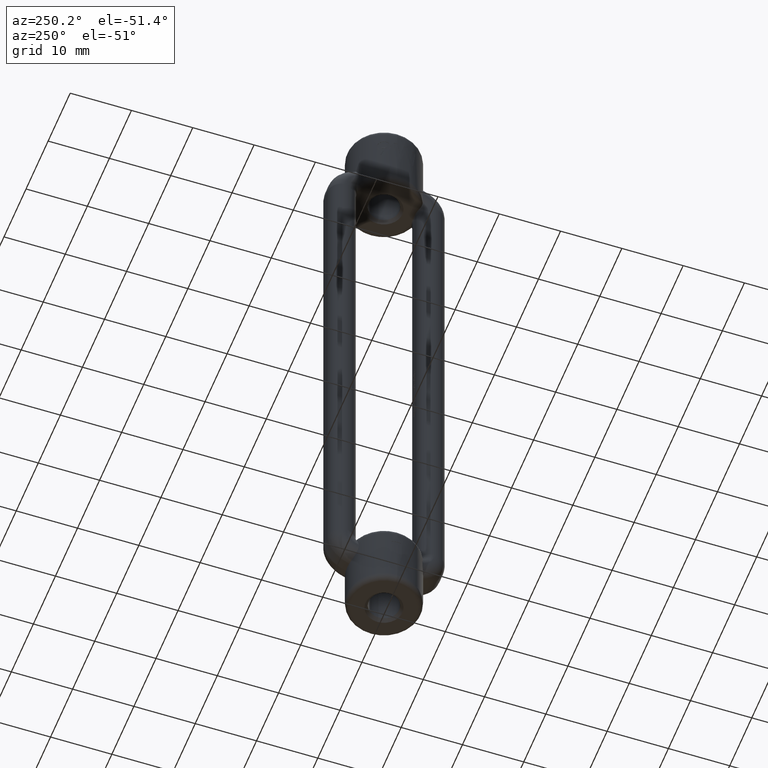
[diagram: clean part render]
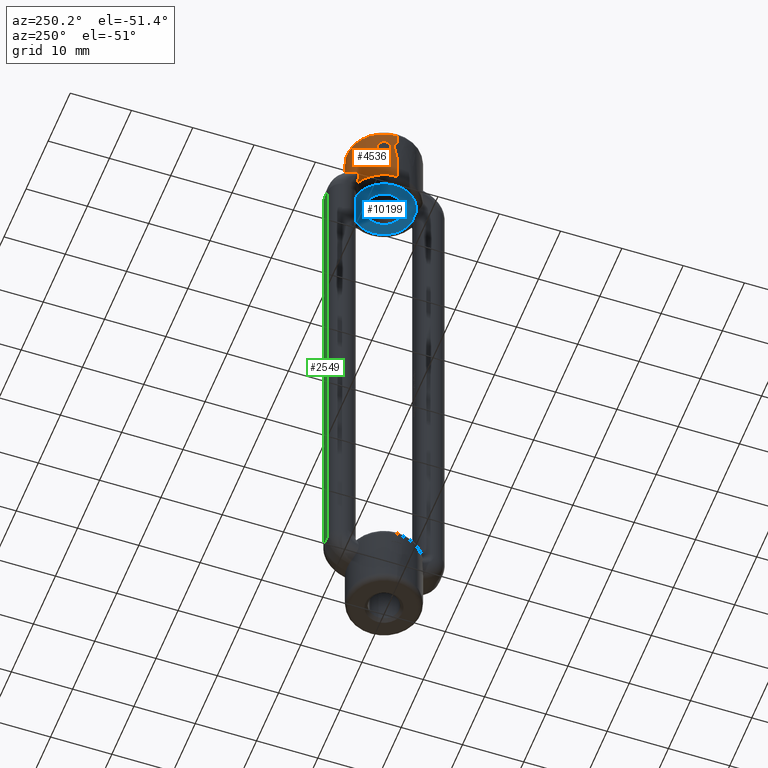
[diagram: same view with three faces highlighted in distinct colors, each labeled with its STEP entity id]
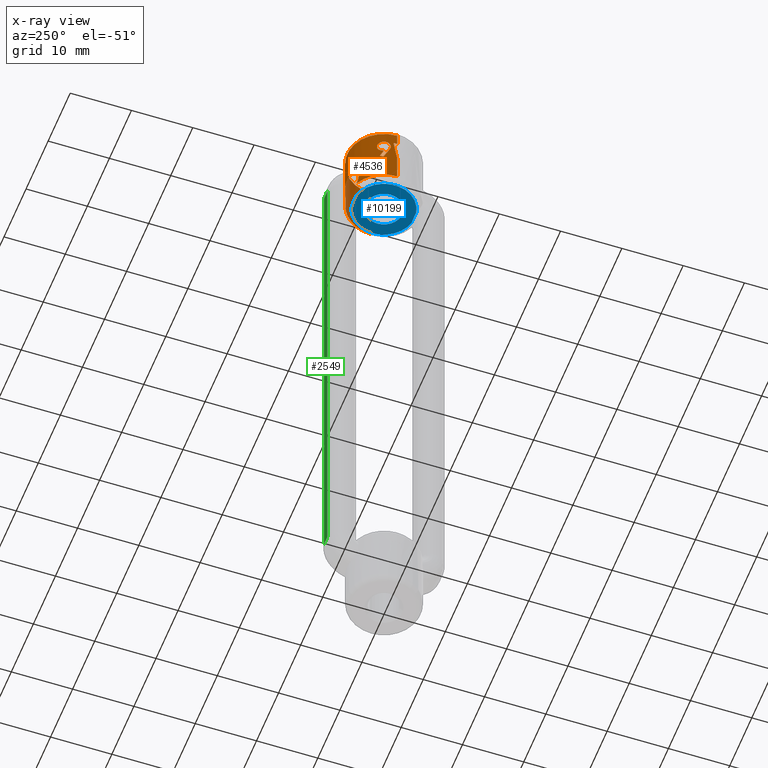
[diagram: x-ray of the same camera — body ghosted, the three highlighted faces saturated]
A machine part, auxiliary view with three faces highlighted in distinct colors.
The next image is the same camera in x-ray (body ghosted, the three faces saturated) — at least one of them is partly hidden behind the body in this view.
Their STEP definitions:

[orange] entity #4536 — the highlighted cylindrical surface (partial cylindrical patch) has radius 6 mm, axis along (-0, -0, 1).
#29 = CARTESIAN_POINT ( 'NONE',  ( 0.7499999999999978900, 5.952940449895339500, 47.64159737816591900 ) ) ;
#35 = VECTOR ( 'NONE', #5380, 1000.000000000000000 ) ;
#36 = ORIENTED_EDGE ( 'NONE', *, *, #11695, .T. ) ;
#68 = VERTEX_POINT ( 'NONE', #5520 ) ;
#226 = ORIENTED_EDGE ( 'NONE', *, *, #3572, .T. ) ;
#315 = ORIENTED_EDGE ( 'NONE', *, *, #6363, .T. ) ;
#320 = EDGE_CURVE ( 'NONE', #801, #796, #11181, .T. ) ;
#469 = CARTESIAN_POINT ( 'NONE',  ( 0.0000000000000000000, 8.766172331216892400E-017, 44.00000000000000000 ) ) ;
#546 = CARTESIAN_POINT ( 'NONE',  ( -2.304958704570859900, 5.541730175539280300, 47.14079233761434300 ) ) ;
#628 = CARTESIAN_POINT ( 'NONE',  ( 0.0000000000000000000, 8.766172331216892400E-017, 52.00000000000000000 ) ) ;
#651 = CARTESIAN_POINT ( 'NONE',  ( -5.913797678753359900, 1.013414514811786800, 50.85001698117587000 ) ) ;
#659 = CARTESIAN_POINT ( 'NONE',  ( -1.175002378234640200, 5.887585423306432200, 47.63384109583831400 ) ) ;
#796 = VERTEX_POINT ( 'NONE', #14278 ) ;
#801 = VERTEX_POINT ( 'NONE', #12590 ) ;
#810 = CARTESIAN_POINT ( 'NONE',  ( -2.937028009426084100, 5.232118848948914500, 46.08331505877326600 ) ) ;
#851 = CARTESIAN_POINT ( 'NONE',  ( -5.598020757115690100, 2.159206955844305700, 49.89532833627806200 ) ) ;
#853 = CARTESIAN_POINT ( 'NONE',  ( -5.185478949208065700, 3.018411571032358700, 51.02380822597781700 ) ) ;
#870 = CARTESIAN_POINT ( 'NONE',  ( -2.838942773329239600, 5.286108378085351900, 46.38542160063488500 ) ) ;
#929 = CARTESIAN_POINT ( 'NONE',  ( -3.006750691557700700, 5.192315499144336300, 45.44067078651962500 ) ) ;
#949 = CARTESIAN_POINT ( 'NONE',  ( -5.549232287926697500, 2.289185045393102400, 48.50420673076921900 ) ) ;
#969 = CARTESIAN_POINT ( 'NONE',  ( -5.190209461629272000, 3.010271162405922000, 50.83120399365944300 ) ) ;
#1026 = B_SPLINE_CURVE_WITH_KNOTS ( 'NONE', 3,
 ( #11283, #853, #7414, #3450, #6158, #16638, #15263, #15207, #7314, #8629, #8747, #15161, #6105, #12598, #16462, #2192, #9854, #7477, #8803, #8581, #5937, #12496, #1971, #16524, #11171, #7258 ),
 .UNSPECIFIED., .F., .F.,
 ( 4, 1, 1, 2, 2, 2, 2, 2, 2, 2, 1, 1, 2, 2, 4 ),
 ( 0.0000000000000000000, 0.03125000000002288400, 0.04687500000002821400, 0.05468750000003089900, 0.06250000000003358400, 0.1250000000000300900, 0.2500000000000230900, 0.5000000000000087700, 0.7499999999999944500, 0.8749999999999896700, 0.9062499999999891200, 0.9218749999999890100, 0.9296874999999890100, 0.9374999999999891200, 1.000000000000000000 ),
 .UNSPECIFIED. ) ;
#1089 = CARTESIAN_POINT ( 'NONE',  ( -5.187644535123259200, 3.014688094462115500, 50.88460341849770400 ) ) ;
#1152 = EDGE_LOOP ( 'NONE', ( #12544, #315, #16393, #226, #12333, #6176, #13812, #11956, #3972, #9320, #3416, #3125 ) ) ;
#1195 = CARTESIAN_POINT ( 'NONE',  ( 0.7499999999999978900, 5.952940449895339500, 47.64159737816591900 ) ) ;
#1205 = CARTESIAN_POINT ( 'NONE',  ( -5.915051361995752500, 1.006066045189890000, 51.04286083507716400 ) ) ;
#1288 = CARTESIAN_POINT ( 'NONE',  ( 2.945415158984749000, 5.227405318499182700, 46.08118356738097500 ) ) ;
#1317 = CARTESIAN_POINT ( 'NONE',  ( -5.914140838981714900, 1.011404136988328200, 51.11892036607588400 ) ) ;
#1382 = VERTEX_POINT ( 'NONE', #9017 ) ;
#1706 = EDGE_CURVE ( 'NONE', #14649, #11580, #2002, .T. ) ;
#1733 = LINE ( 'NONE', #2802, #7085 ) ;
#1807 = AXIS2_PLACEMENT_3D ( 'NONE', #3673, #8973, #3853 ) ;
#1825 = CARTESIAN_POINT ( 'NONE',  ( -5.999522629618147600, 0.2112708160789230900, 49.66666666666667100 ) ) ;
#1929 = CARTESIAN_POINT ( 'NONE',  ( -0.9651402668189622600, 5.925835324038244400, 47.65189275775177400 ) ) ;
#1971 = CARTESIAN_POINT ( 'NONE',  ( -5.600704215252572600, 2.152236259757724000, 52.08480081622470000 ) ) ;
#1975 = VERTEX_POINT ( 'NONE', #10804 ) ;
#1979 = CARTESIAN_POINT ( 'NONE',  ( -5.914525494683103600, 1.009152575430216000, 50.89320989713968400 ) ) ;
#1987 = AXIS2_PLACEMENT_3D ( 'NONE', #3105, #4446, #13616 ) ;
#2002 = CIRCLE ( 'NONE', #1807, 6.000000000000010700 ) ;
#2191 = CARTESIAN_POINT ( 'NONE',  ( -5.530826958189355700, 2.326954081025029500, 49.92444789662295100 ) ) ;
#2192 = CARTESIAN_POINT ( 'NONE',  ( -5.509734893982889400, 2.376316600366511700, 52.03616228566760800 ) ) ;
#2203 = CARTESIAN_POINT ( 'NONE',  ( -2.800668084158417500, 5.308986296945967400, 44.39628917197981700 ) ) ;
#2241 = CARTESIAN_POINT ( 'NONE',  ( -5.283773864583570100, 2.843084887911955200, 50.33186427976853800 ) ) ;
#2254 = CARTESIAN_POINT ( 'NONE',  ( -3.006026016381828600, 5.192788520953060400, 45.65923896246287200 ) ) ;
#2267 = VERTEX_POINT ( 'NONE', #7447 ) ;
#2360 = CARTESIAN_POINT ( 'NONE',  ( -5.696537172970273000, 1.884371661953073700, 52.07782451861479000 ) ) ;
#2451 = B_SPLINE_CURVE_WITH_KNOTS ( 'NONE', 3,
 ( #7554, #14135, #11871, #11766, #15696, #1288, #11819, #9015, #7955, #13097, #9189, #6419, #7841, #4003, #17024, #3888, #3942, #29 ),
 .UNSPECIFIED., .F., .F.,
 ( 4, 2, 2, 2, 2, 2, 2, 2, 4 ),
 ( 2.166501582897853700E-007, 0.001282598035847452200, 0.001923788728692033400, 0.002564979421536614900, 0.002885574767958914900, 0.003206170114381215400, 0.003847360807225815900, 0.004488551500070416000, 0.005129742192915016900 ),
 .UNSPECIFIED. ) ;
#2475 = CARTESIAN_POINT ( 'NONE',  ( -5.914772430435239600, 1.007706064400076800, 51.07846341776329500 ) ) ;
#2535 = CARTESIAN_POINT ( 'NONE',  ( -5.185793096179752500, 3.017872003833334600, 50.95270240985832500 ) ) ;
#2587 = CARTESIAN_POINT ( 'NONE',  ( -5.719082213135365600, 1.838454926354022900, 48.99265491452990100 ) ) ;
#2592 = CARTESIAN_POINT ( 'NONE',  ( 0.0000000000000000000, 8.766172331216892400E-017, 43.00000000000000000 ) ) ;
#2646 = CARTESIAN_POINT ( 'NONE',  ( -5.889878537244712200, 1.145009742296649900, 51.53817584700581700 ) ) ;
#2697 = DIRECTION ( 'NONE',  ( 1.000000000000000000, 0.0000000000000000000, 0.0000000000000000000 ) ) ;
#2736 = EDGE_CURVE ( 'NONE', #9759, #6697, #1733, .T. ) ;
#2802 = CARTESIAN_POINT ( 'NONE',  ( -6.000000000000010700, 8.224498028005821500E-016, 43.00000000000000000 ) ) ;
#2937 = VERTEX_POINT ( 'NONE', #5911 ) ;
#2985 = DIRECTION ( 'NONE',  ( -0.0000000000000000000, -0.0000000000000000000, 1.000000000000000000 ) ) ;
#3105 = CARTESIAN_POINT ( 'NONE',  ( 0.0000000000000000000, 8.766172331216892400E-017, 53.99999999999999300 ) ) ;
#3125 = ORIENTED_EDGE ( 'NONE', *, *, #6924, .T. ) ;
#3164 = FACE_OUTER_BOUND ( 'NONE', #1152, .T. ) ;
#3169 = CARTESIAN_POINT ( 'NONE',  ( -6.000000000000010700, 8.224498028005821500E-016, 44.00000000000000000 ) ) ;
#3289 = EDGE_LOOP ( 'NONE', ( #36, #15165, #14578, #6222, #10802, #12403, #13098 ) ) ;
#3316 = CARTESIAN_POINT ( 'NONE',  ( -5.999983614281760000, 0.01402242313256421600, 48.50000000000000000 ) ) ;
#3332 = DIRECTION ( 'NONE',  ( -0.9999873761903792500, -0.005024685052919713000, 0.0000000000000000000 ) ) ;
#3416 = ORIENTED_EDGE ( 'NONE', *, *, #16732, .T. ) ;
#3450 = CARTESIAN_POINT ( 'NONE',  ( -5.186676181487635900, 3.016353840689753000, 51.08318639601817800 ) ) ;
#3501 = CARTESIAN_POINT ( 'NONE',  ( -5.504255819962291500, 2.389059699880379500, 49.94568608195660200 ) ) ;
#3565 = CARTESIAN_POINT ( 'NONE',  ( -5.247931604637897400, 2.908713083989622500, 50.45175496275299300 ) ) ;
#3571 = CIRCLE ( 'NONE', #6489, 6.000000000000010700 ) ;
#3572 = EDGE_CURVE ( 'NONE', #2267, #9654, #13815, .T. ) ;
#3584 = CARTESIAN_POINT ( 'NONE',  ( -2.960064717899300900, 5.219035171798940300, 45.97723860831986500 ) ) ;
#3668 = CARTESIAN_POINT ( 'NONE',  ( -5.394719864004135200, 2.626213545947727400, 48.69210737179486200 ) ) ;
#3673 = CARTESIAN_POINT ( 'NONE',  ( 0.0000000000000000000, 8.766172331216892400E-017, 44.00000000000000000 ) ) ;
#3736 = VERTEX_POINT ( 'NONE', #16607 ) ;
#3853 = DIRECTION ( 'NONE',  ( 1.000000000000000000, 0.0000000000000000000, 0.0000000000000000000 ) ) ;
#3888 = CARTESIAN_POINT ( 'NONE',  ( 1.179724464645114800, 5.886598269086723800, 47.63311720288320600 ) ) ;
#3913 = CARTESIAN_POINT ( 'NONE',  ( -5.913225707512100200, 1.016745853756190600, 51.16212216187960800 ) ) ;
#3942 = CARTESIAN_POINT ( 'NONE',  ( 0.9650953604838098400, 5.925840981704811700, 47.65189060879237100 ) ) ;
#3972 = ORIENTED_EDGE ( 'NONE', *, *, #12320, .T. ) ;
#3973 = CARTESIAN_POINT ( 'NONE',  ( -5.801266004134415500, 1.531756321629560000, 51.94713610454915200 ) ) ;
#4003 = CARTESIAN_POINT ( 'NONE',  ( 1.783913712234235700, 5.731824556728942500, 47.46652278982664800 ) ) ;
#4031 = CARTESIAN_POINT ( 'NONE',  ( -5.896079709996216800, 1.112195178687999100, 51.47702964761077000 ) ) ;
#4079 = EDGE_CURVE ( 'NONE', #2937, #16707, #7696, .T. ) ;
#4291 = CARTESIAN_POINT ( 'NONE',  ( -2.647647802106272600, 5.384232639476302000, 44.00000000002789600 ) ) ;
#4363 = CARTESIAN_POINT ( 'NONE',  ( -5.563410942477244000, 2.256058481308990800, 49.49138621794871500 ) ) ;
#4446 = DIRECTION ( 'NONE',  ( 0.0000000000000000000, 0.0000000000000000000, -1.000000000000000000 ) ) ;
#4480 = EDGE_CURVE ( 'NONE', #6991, #2937, #14571, .T. ) ;
#4536 = ADVANCED_FACE ( 'NONE', ( #6031, #3164 ), #8922, .T. ) ;
#4538 = CARTESIAN_POINT ( 'NONE',  ( -5.483715815831623700, 2.443399688376807400, 49.09174679487178800 ) ) ;
#4586 = CARTESIAN_POINT ( 'NONE',  ( -5.893937001892933100, 1.123846012227063500, 50.45965625714669800 ) ) ;
#4604 = CIRCLE ( 'NONE', #1987, 6.000000000000010700 ) ;
#4652 = CARTESIAN_POINT ( 'NONE',  ( -2.705202318169218400, 5.356494360883928600, 46.66855899342463900 ) ) ;
#4700 = CARTESIAN_POINT ( 'NONE',  ( -5.910426797692108100, 1.032910514748755200, 50.73827508228871600 ) ) ;
#4756 = CARTESIAN_POINT ( 'NONE',  ( -2.647647802106272600, 5.384232639476302000, 44.00000000002789600 ) ) ;
#4848 = CARTESIAN_POINT ( 'NONE',  ( -5.373787346706635900, 2.670674292670434100, 50.11553027444055200 ) ) ;
#4852 = CARTESIAN_POINT ( 'NONE',  ( -5.672547408745510100, 1.955049107892157900, 52.08587712538162900 ) ) ;
#4876 = CARTESIAN_POINT ( 'NONE',  ( -5.394719864004135200, 2.626213545947727400, 48.69210737179486200 ) ) ;
#4907 = CARTESIAN_POINT ( 'NONE',  ( -5.233050530486567100, 2.935270178268795300, 50.51361642789479600 ) ) ;
#5135 = CARTESIAN_POINT ( 'NONE',  ( -5.186505673003161100, 3.016647399863949400, 50.91716474540790900 ) ) ;
#5137 = CARTESIAN_POINT ( 'NONE',  ( -5.864256930983699200, 1.269246838516550100, 51.71342967741062300 ) ) ;
#5297 = CARTESIAN_POINT ( 'NONE',  ( -5.914288357984567300, 1.010541147225898700, 51.11046543049739200 ) ) ;
#5380 = DIRECTION ( 'NONE',  ( -0.0000000000000000000, -0.0000000000000000000, 1.000000000000000000 ) ) ;
#5500 = B_SPLINE_CURVE_WITH_KNOTS ( 'NONE', 3,
 ( #13656, #1929, #659, #7102, #16313, #8419, #546, #11465, #4652, #870, #16650, #810, #3584, #2254, #929, #8763, #2203, #4756 ),
 .UNSPECIFIED., .F., .F.,
 ( 4, 2, 2, 2, 2, 2, 2, 2, 4 ),
 ( 1.989487527438745200E-007, 0.0006422322189873843900, 0.001284265489222024800, 0.001926298759456665400, 0.002568332029691305800, 0.002889348664808616900, 0.003210365299925928000, 0.003852398570160571000, 0.005136465110629856600 ),
 .UNSPECIFIED. ) ;
#5520 = CARTESIAN_POINT ( 'NONE',  ( -5.614584539596020100, 2.115760016573116500, 48.41025641025639500 ) ) ;
#5571 = CARTESIAN_POINT ( 'NONE',  ( 0.0000000000000000000, 8.766172331216892400E-017, 48.49999999999999300 ) ) ;
#5584 = B_SPLINE_CURVE_WITH_KNOTS ( 'NONE', 3,
 ( #15080, #949, #8726, #3668 ),
 .UNSPECIFIED., .F., .F.,
 ( 4, 4 ),
 ( 0.0000000000000000000, 1.000000000000000000 ),
 .UNSPECIFIED. ) ;
#5684 = CARTESIAN_POINT ( 'NONE',  ( -5.633394045033795400, 2.065156539678746600, 49.89102564102563500 ) ) ;
#5808 = DIRECTION ( 'NONE',  ( -0.0000000000000000000, -0.0000000000000000000, 1.000000000000000000 ) ) ;
#5834 = CARTESIAN_POINT ( 'NONE',  ( -5.915025276794478900, 1.006219327258190500, 50.94001500447726700 ) ) ;
#5911 = CARTESIAN_POINT ( 'NONE',  ( -5.915256637066153000, 1.004857660390238800, 50.99529246794870800 ) ) ;
#5937 = CARTESIAN_POINT ( 'NONE',  ( -5.595412412063323500, 2.165959227057439000, 52.08345306902477000 ) ) ;
#6031 = FACE_BOUND ( 'NONE', #3289, .T. ) ;
#6082 = VERTEX_POINT ( 'NONE', #8553 ) ;
#6105 = CARTESIAN_POINT ( 'NONE',  ( -5.285742065962826300, 2.841130540971114300, 51.66094322215631300 ) ) ;
#6122 = EDGE_CURVE ( 'NONE', #9280, #1382, #2451, .T. ) ;
#6136 = AXIS2_PLACEMENT_3D ( 'NONE', #5571, #2985, #14784 ) ;
#6158 = CARTESIAN_POINT ( 'NONE',  ( -5.186996035843475500, 3.015803735539163400, 51.09369494866891900 ) ) ;
#6176 = ORIENTED_EDGE ( 'NONE', *, *, #2736, .T. ) ;
#6222 = ORIENTED_EDGE ( 'NONE', *, *, #12423, .T. ) ;
#6322 = CARTESIAN_POINT ( 'NONE',  ( -5.802997340230840400, 1.553396197404405900, 49.57505341880340700 ) ) ;
#6343 = CARTESIAN_POINT ( 'NONE',  ( -5.865411788359582900, 1.263702715425021300, 50.15745192307691300 ) ) ;
#6363 = EDGE_CURVE ( 'NONE', #11580, #3736, #15700, .T. ) ;
#6419 = CARTESIAN_POINT ( 'NONE',  ( 2.307299012493393900, 5.540780342936117500, 47.13899643784969800 ) ) ;
#6449 = CARTESIAN_POINT ( 'NONE',  ( -5.910575415112737700, 1.032061561607305700, 51.24503538478880700 ) ) ;
#6489 = AXIS2_PLACEMENT_3D ( 'NONE', #469, #8462, #6966 ) ;
#6587 = CARTESIAN_POINT ( 'NONE',  ( -5.394719864004135200, 2.626213545947727400, 48.69210737179486200 ) ) ;
#6697 = VERTEX_POINT ( 'NONE', #16667 ) ;
#6924 = EDGE_CURVE ( 'NONE', #6082, #14649, #5500, .T. ) ;
#6966 = DIRECTION ( 'NONE',  ( 1.000000000000000000, 0.0000000000000000000, 0.0000000000000000000 ) ) ;
#6976 = VERTEX_POINT ( 'NONE', #12614 ) ;
#6991 = VERTEX_POINT ( 'NONE', #16429 ) ;
#7085 = VECTOR ( 'NONE', #10634, 1000.000000000000000 ) ;
#7102 = CARTESIAN_POINT ( 'NONE',  ( -1.584637498169512200, 5.790787226706097400, 47.54182828196277900 ) ) ;
#7209 = CARTESIAN_POINT ( 'NONE',  ( -5.908220257196444600, 1.045521629168334200, 50.68415769741501000 ) ) ;
#7226 = CARTESIAN_POINT ( 'NONE',  ( -5.989327010479922100, 0.4084961475492161500, 50.83333333333333600 ) ) ;
#7258 = CARTESIAN_POINT ( 'NONE',  ( -5.638924076303554000, 2.050008600392749800, 52.08974358974358400 ) ) ;
#7314 = CARTESIAN_POINT ( 'NONE',  ( -5.191051110645673800, 3.008825472824483400, 51.17580378518741900 ) ) ;
#7368 = CARTESIAN_POINT ( 'NONE',  ( -5.914593178642836500, 1.008755585918290200, 50.89845301496185200 ) ) ;
#7412 = CARTESIAN_POINT ( 'NONE',  ( -5.617971215487262500, 2.106825805952720300, 49.89233849633169600 ) ) ;
#7414 = CARTESIAN_POINT ( 'NONE',  ( -5.185982692849775000, 3.017546107437199400, 51.05479092943805600 ) ) ;
#7447 = CARTESIAN_POINT ( 'NONE',  ( -5.999983614281760000, 0.01402242313256421600, 48.50000000000000000 ) ) ;
#7475 = CARTESIAN_POINT ( 'NONE',  ( -5.608541093517965600, 2.131747098271349100, 49.89353616647608200 ) ) ;
#7477 = CARTESIAN_POINT ( 'NONE',  ( -5.569708897837932300, 2.231288101780651600, 52.07396232378202700 ) ) ;
#7528 = CARTESIAN_POINT ( 'NONE',  ( -5.422649064832441500, 2.571503576586383000, 50.03272189744241400 ) ) ;
#7531 = CARTESIAN_POINT ( 'NONE',  ( -5.685442198442397700, 1.917517733709261500, 52.08269539686131100 ) ) ;
#7554 = CARTESIAN_POINT ( 'NONE',  ( 2.647647802095501200, 5.384232639481599100, 44.00000000000000000 ) ) ;
#7593 = EDGE_CURVE ( 'NONE', #2267, #3736, #15878, .T. ) ;
#7645 = EDGE_CURVE ( 'NONE', #16707, #68, #15089, .T. ) ;
#7696 = B_SPLINE_CURVE_WITH_KNOTS ( 'NONE', 3,
 ( #14871, #8531, #5834, #15107, #7368, #1979, #651, #12390, #4700, #7209, #9860, #12554, #11120, #9808, #13882, #4586, #11289, #16593 ),
 .UNSPECIFIED., .F., .F.,
 ( 4, 1, 2, 2, 2, 1, 1, 1, 2, 2, 4 ),
 ( 0.0000000000000000000, 0.06250000000005623300, 0.09375000000007262200, 0.1250000000000890100, 0.2500000000001297300, 0.3750000000001705300, 0.4375000000001909600, 0.4687500000002122200, 0.4843750000002228200, 0.5000000000002333700, 1.000000000000000000 ),
 .UNSPECIFIED. ) ;
#7750 = CARTESIAN_POINT ( 'NONE',  ( 0.2470596802528521300, 6.000124115655126800, 47.62342693321000600 ) ) ;
#7841 = CARTESIAN_POINT ( 'NONE',  ( 2.143290492561870800, 5.607358268053874700, 47.26585826454376600 ) ) ;
#7868 = CARTESIAN_POINT ( 'NONE',  ( -5.785097106415429700, 1.591733692839867800, 51.98179083212963300 ) ) ;
#7873 = CARTESIAN_POINT ( 'NONE',  ( -6.000000000000010700, 8.224498028005821500E-016, 52.00000000000000000 ) ) ;
#7955 = CARTESIAN_POINT ( 'NONE',  ( 2.699534470347795300, 5.358797340173954800, 46.66224462245958900 ) ) ;
#8092 = VECTOR ( 'NONE', #11847, 1000.000000000000000 ) ;
#8419 = CARTESIAN_POINT ( 'NONE',  ( -2.139499387628913200, 5.608793237180060800, 47.26842114432391600 ) ) ;
#8462 = DIRECTION ( 'NONE',  ( -0.0000000000000000000, -0.0000000000000000000, 1.000000000000000000 ) ) ;
#8531 = CARTESIAN_POINT ( 'NONE',  ( -5.915186918769435900, 1.005268068384979100, 50.97161399982228900 ) ) ;
#8553 = CARTESIAN_POINT ( 'NONE',  ( -0.7499999999999982200, 5.952940449895340400, 47.64159737816591900 ) ) ;
#8581 = CARTESIAN_POINT ( 'NONE',  ( -5.590637564509831000, 2.178280807828333100, 52.08210314328504600 ) ) ;
#8629 = CARTESIAN_POINT ( 'NONE',  ( -5.200824092885249600, 2.991922156720746400, 51.28380492225702600 ) ) ;
#8726 = CARTESIAN_POINT ( 'NONE',  ( -5.475839162623902500, 2.459579765426188400, 48.59815705128204400 ) ) ;
#8744 = CARTESIAN_POINT ( 'NONE',  ( -5.583194556093670400, 2.197535741972863800, 49.89873911669149500 ) ) ;
#8747 = CARTESIAN_POINT ( 'NONE',  ( -5.210399734141192100, 2.975299045457357100, 51.35142465657794700 ) ) ;
#8749 = CARTESIAN_POINT ( 'NONE',  ( -5.638924076303554000, 2.050008600392749800, 52.08974358974358400 ) ) ;
#8763 = CARTESIAN_POINT ( 'NONE',  ( -2.938385424700627400, 5.231505610362474600, 44.80068779011858700 ) ) ;
#8803 = CARTESIAN_POINT ( 'NONE',  ( -5.579429179443749800, 2.206923044518448200, 52.07831179699569900 ) ) ;
#8859 = CARTESIAN_POINT ( 'NONE',  ( -5.192056114414861600, 3.007085214737347500, 50.80496202017811700 ) ) ;
#8922 = CYLINDRICAL_SURFACE ( 'NONE', #17043, 6.000000000000010700 ) ;
#8963 = B_SPLINE_CURVE_WITH_KNOTS ( 'NONE', 3,
 ( #6587, #4538, #4363, #5684 ),
 .UNSPECIFIED., .F., .F.,
 ( 4, 4 ),
 ( 0.0000000000000000000, 1.000000000000000000 ),
 .UNSPECIFIED. ) ;
#8967 = EDGE_CURVE ( 'NONE', #10700, #801, #8963, .T. ) ;
#8973 = DIRECTION ( 'NONE',  ( -0.0000000000000000000, -0.0000000000000000000, 1.000000000000000000 ) ) ;
#9015 = CARTESIAN_POINT ( 'NONE',  ( 2.751915404549501800, 5.331932984584225800, 46.57028028939994600 ) ) ;
#9017 = CARTESIAN_POINT ( 'NONE',  ( 0.7499999999999978900, 5.952940449895339500, 47.64159737816591900 ) ) ;
#9090 = CARTESIAN_POINT ( 'NONE',  ( -5.865411788359582900, 1.263702715425021300, 50.15745192307691300 ) ) ;
#9189 = CARTESIAN_POINT ( 'NONE',  ( 2.518899704307326900, 5.446201719094947400, 46.91376766499575300 ) ) ;
#9215 = CARTESIAN_POINT ( 'NONE',  ( -5.809351232582817400, 1.500750504070064600, 51.92673583835823300 ) ) ;
#9280 = VERTEX_POINT ( 'NONE', #11647 ) ;
#9320 = ORIENTED_EDGE ( 'NONE', *, *, #6122, .T. ) ;
#9654 = VERTEX_POINT ( 'NONE', #10253 ) ;
#9759 = VERTEX_POINT ( 'NONE', #7873 ) ;
#9808 = CARTESIAN_POINT ( 'NONE',  ( -5.901586414052502500, 1.082257056010603500, 50.57046072802408100 ) ) ;
#9810 = CIRCLE ( 'NONE', #14562, 6.000000000000010700 ) ;
#9854 = CARTESIAN_POINT ( 'NONE',  ( -5.537064974899203100, 2.312092615054504500, 52.05702019568558100 ) ) ;
#9860 = CARTESIAN_POINT ( 'NONE',  ( -5.904877875536301200, 1.064179042769247700, 50.62251111556864900 ) ) ;
#10067 = CARTESIAN_POINT ( 'NONE',  ( -5.666915829129932200, 1.971333995608873100, 52.08697791684601000 ) ) ;
#10119 = CARTESIAN_POINT ( 'NONE',  ( -5.569869102981122900, 2.231086889794892300, 49.90389396253162600 ) ) ;
#10123 = CARTESIAN_POINT ( 'NONE',  ( -5.647044863205568500, 2.027670888847766600, 52.08925434797088600 ) ) ;
#10178 = CARTESIAN_POINT ( 'NONE',  ( -5.633394045033795400, 2.065156539678746600, 49.89102564102563500 ) ) ;
#10180 = CARTESIAN_POINT ( 'NONE',  ( 6.000000000000010700, 8.766172331216892400E-017, 43.00000000000000000 ) ) ;
#10182 = CARTESIAN_POINT ( 'NONE',  ( -5.750082517442057100, 1.713976670865800900, 52.03469598263306800 ) ) ;
#10253 = CARTESIAN_POINT ( 'NONE',  ( -5.969446269926165400, 0.6047406307374466600, 52.00000000000000000 ) ) ;
#10423 = CARTESIAN_POINT ( 'NONE',  ( -5.877598269230657200, 1.205930225551805200, 51.63069127555778700 ) ) ;
#10474 = CARTESIAN_POINT ( 'NONE',  ( -5.912437324022366000, 1.021321737102433200, 51.18928139037895900 ) ) ;
#10526 = CARTESIAN_POINT ( 'NONE',  ( -5.905542431275138800, 1.060506493552342300, 51.34665567867592300 ) ) ;
#10587 = CARTESIAN_POINT ( 'NONE',  ( -5.913902427076614300, 1.012797994447336900, 51.13169249053176900 ) ) ;
#10634 = DIRECTION ( 'NONE',  ( -0.0000000000000000000, -0.0000000000000000000, 1.000000000000000000 ) ) ;
#10700 = VERTEX_POINT ( 'NONE', #4876 ) ;
#10802 = ORIENTED_EDGE ( 'NONE', *, *, #4480, .T. ) ;
#10804 = CARTESIAN_POINT ( 'NONE',  ( 6.000000000000010700, 8.766172331216892400E-017, 44.00000000000000000 ) ) ;
#11120 = CARTESIAN_POINT ( 'NONE',  ( -5.902160279095485700, 1.079123059563334500, 50.57908995791014200 ) ) ;
#11171 = CARTESIAN_POINT ( 'NONE',  ( -5.622760375411020900, 2.094469819778665100, 52.08851379480754700 ) ) ;
#11181 = B_SPLINE_CURVE_WITH_KNOTS ( 'NONE', 3,
 ( #10178, #13927, #7412, #7475, #13981, #16637, #851, #15374, #8744, #10119, #2191, #3501, #7528, #4848, #14038, #2241, #3565, #4907, #14104, #16751, #8859, #969, #12826, #17094, #1089, #16992, #5135, #2535, #15548 ),
 .UNSPECIFIED., .F., .F.,
 ( 4, 2, 1, 2, 2, 2, 2, 2, 2, 2, 2, 1, 1, 2, 2, 4 ),
 ( 0.0000000000000000000, 0.03125000000000430900, 0.04687500000000709200, 0.05468750000000805600, 0.06250000000000902100, 0.1250000000000106600, 0.2500000000000163200, 0.5000000000000283100, 0.6250000000000304200, 0.7500000000000325300, 0.8750000000000347500, 0.9062500000000323100, 0.9218750000000370800, 0.9296875000000334200, 0.9375000000000296400, 1.000000000000000000 ),
 .UNSPECIFIED. ) ;
#11283 = CARTESIAN_POINT ( 'NONE',  ( -5.185183489933542100, 3.018919040935137900, 51.00020032051281000 ) ) ;
#11289 = CARTESIAN_POINT ( 'NONE',  ( -5.882713697485474600, 1.183396785470598900, 50.32485419422646100 ) ) ;
#11397 = CARTESIAN_POINT ( 'NONE',  ( -5.719533369549939300, 1.813375404600119600, 52.06338168877822200 ) ) ;
#11465 = CARTESIAN_POINT ( 'NONE',  ( -2.585578421051064600, 5.416492610246478100, 46.84347446245404000 ) ) ;
#11506 = CARTESIAN_POINT ( 'NONE',  ( -5.662881964147581800, 1.982888585143583800, 52.08756391052561000 ) ) ;
#11580 = VERTEX_POINT ( 'NONE', #3169 ) ;
#11602 = LINE ( 'NONE', #10180, #8092 ) ;
#11647 = CARTESIAN_POINT ( 'NONE',  ( 2.647647802095501200, 5.384232639481599100, 44.00000000000000000 ) ) ;
#11687 = CARTESIAN_POINT ( 'NONE',  ( -5.915256637066153000, 1.004857660390238800, 50.99529246794870800 ) ) ;
#11695 = EDGE_CURVE ( 'NONE', #68, #10700, #5584, .T. ) ;
#11766 = CARTESIAN_POINT ( 'NONE',  ( 3.006789111494904800, 5.192295254808551700, 45.43910314158557600 ) ) ;
#11819 = CARTESIAN_POINT ( 'NONE',  ( 2.885886852020088900, 5.261354204090058500, 46.28475913905557300 ) ) ;
#11847 = DIRECTION ( 'NONE',  ( -0.0000000000000000000, -0.0000000000000000000, 1.000000000000000000 ) ) ;
#11848 = CARTESIAN_POINT ( 'NONE',  ( -5.776645422852912000, 1.622158304208575900, 51.99711071163318400 ) ) ;
#11871 = CARTESIAN_POINT ( 'NONE',  ( 2.937398188807678800, 5.232067944592826000, 44.79533901303744900 ) ) ;
#11927 = CARTESIAN_POINT ( 'NONE',  ( -6.000000000000010700, 8.224498028005821500E-016, 43.00000000000000000 ) ) ;
#11956 = ORIENTED_EDGE ( 'NONE', *, *, #12522, .F. ) ;
#12320 = EDGE_CURVE ( 'NONE', #1975, #9280, #3571, .T. ) ;
#12333 = ORIENTED_EDGE ( 'NONE', *, *, #15764, .T. ) ;
#12390 = CARTESIAN_POINT ( 'NONE',  ( -5.912822342017643800, 1.019107950166486400, 50.81156711329974500 ) ) ;
#12403 = ORIENTED_EDGE ( 'NONE', *, *, #4079, .T. ) ;
#12423 = EDGE_CURVE ( 'NONE', #796, #6991, #1026, .T. ) ;
#12496 = CARTESIAN_POINT ( 'NONE',  ( -5.598589203169311200, 2.157734545421096300, 52.08429192241662500 ) ) ;
#12522 = EDGE_CURVE ( 'NONE', #1975, #6976, #11602, .T. ) ;
#12544 = ORIENTED_EDGE ( 'NONE', *, *, #1706, .T. ) ;
#12554 = CARTESIAN_POINT ( 'NONE',  ( -5.903006280844812700, 1.074492298065033500, 50.59206041643872000 ) ) ;
#12590 = CARTESIAN_POINT ( 'NONE',  ( -5.633394045033795400, 2.065156539678746600, 49.89102564102563500 ) ) ;
#12598 = CARTESIAN_POINT ( 'NONE',  ( -5.382196161582791100, 2.653875735028155900, 51.87551797560972500 ) ) ;
#12614 = CARTESIAN_POINT ( 'NONE',  ( 6.000000000000010700, 8.766172331216892400E-017, 53.99999999999999300 ) ) ;
#12715 = CARTESIAN_POINT ( 'NONE',  ( -5.654016764683374800, 2.008086539101782400, 52.08864827294480200 ) ) ;
#12826 = CARTESIAN_POINT ( 'NONE',  ( -5.188587288180492900, 3.013065395893922600, 50.86225165265479800 ) ) ;
#13060 = CARTESIAN_POINT ( 'NONE',  ( -0.7499999999999982200, 5.952940449895340400, 47.64159737816591900 ) ) ;
#13097 = CARTESIAN_POINT ( 'NONE',  ( 2.583220519880362600, 5.415825609758909000, 46.83352028015509900 ) ) ;
#13098 = ORIENTED_EDGE ( 'NONE', *, *, #7645, .T. ) ;
#13120 = DIRECTION ( 'NONE',  ( -0.0000000000000000000, -0.0000000000000000000, 1.000000000000000000 ) ) ;
#13167 = CARTESIAN_POINT ( 'NONE',  ( -5.909137567226499000, 1.040287768865066200, 51.27852321511289800 ) ) ;
#13187 = B_SPLINE_CURVE_WITH_KNOTS ( 'NONE', 3,
 ( #1195, #14336, #7750, #15542, #16988, #13060 ),
 .UNSPECIFIED., .F., .F.,
 ( 4, 2, 4 ),
 ( 0.01739427789130242000, 0.01814323912299327400, 0.01889220035468413100 ),
 .UNSPECIFIED. ) ;
#13616 = DIRECTION ( 'NONE',  ( -1.000000000000000000, 0.0000000000000000000, 0.0000000000000000000 ) ) ;
#13656 = CARTESIAN_POINT ( 'NONE',  ( -0.7499999999999982200, 5.952940449895340400, 47.64159737816591900 ) ) ;
#13812 = ORIENTED_EDGE ( 'NONE', *, *, #13827, .T. ) ;
#13815 = B_SPLINE_CURVE_WITH_KNOTS ( 'NONE', 3,
 ( #3316, #1825, #7226, #15067 ),
 .UNSPECIFIED., .F., .F.,
 ( 4, 4 ),
 ( 0.0000000000000000000, 1.000000000000000000 ),
 .UNSPECIFIED. ) ;
#13827 = EDGE_CURVE ( 'NONE', #6697, #6976, #4604, .T. ) ;
#13882 = CARTESIAN_POINT ( 'NONE',  ( -5.901218343795399300, 1.084261751789362000, 50.56505191979668700 ) ) ;
#13927 = CARTESIAN_POINT ( 'NONE',  ( -5.625236702140415300, 2.087408376765154600, 49.89163472897536900 ) ) ;
#13981 = CARTESIAN_POINT ( 'NONE',  ( -5.604192462834852500, 2.143156359853263500, 49.89417050632577900 ) ) ;
#14038 = CARTESIAN_POINT ( 'NONE',  ( -5.304475146814562300, 2.804472557026628000, 50.27526856122499100 ) ) ;
#14104 = CARTESIAN_POINT ( 'NONE',  ( -5.208331855741637800, 2.978910565043324100, 50.64977260127246000 ) ) ;
#14135 = CARTESIAN_POINT ( 'NONE',  ( 2.800019534227935500, 5.309305215520881300, 44.39460956904219600 ) ) ;
#14163 = CARTESIAN_POINT ( 'NONE',  ( -5.670370883511537800, 1.961352890777157400, 52.08632620446140700 ) ) ;
#14278 = CARTESIAN_POINT ( 'NONE',  ( -5.185183489933542100, 3.018919040935137900, 51.00020032051281000 ) ) ;
#14285 = CARTESIAN_POINT ( 'NONE',  ( -5.903432560545086400, 1.072225498030922700, 51.37988034500153100 ) ) ;
#14336 = CARTESIAN_POINT ( 'NONE',  ( 0.4995404833553980800, 5.984495382968245500, 47.62961182179902400 ) ) ;
#14392 = CARTESIAN_POINT ( 'NONE',  ( -5.914374557202883400, 1.010036467714078100, 51.10505481578758200 ) ) ;
#14447 = CARTESIAN_POINT ( 'NONE',  ( -5.859241993623284000, 1.292245173856585700, 51.74031709505597800 ) ) ;
#14562 = AXIS2_PLACEMENT_3D ( 'NONE', #628, #5808, #3332 ) ;
#14571 = B_SPLINE_CURVE_WITH_KNOTS ( 'NONE', 3,
 ( #8749, #10123, #12715, #11506, #10067, #14163, #4852, #15431, #7531, #2360, #11397, #16757, #10182, #16872, #11848, #7868, #3973, #9215, #15829, #15783, #14447, #5137, #15612, #10423, #2646, #4031, #14285, #10526, #13167, #6449, #10474, #3913, #10587, #1317, #5297, #14392, #2475, #1205, #11687 ),
 .UNSPECIFIED., .F., .F.,
 ( 4, 2, 1, 2, 2, 2, 2, 2, 2, 2, 2, 2, 2, 2, 2, 2, 1, 1, 2, 2, 4 ),
 ( 0.0000000000000000000, 0.03124999999999567000, 0.04687499999999364400, 0.05468749999999306100, 0.06249999999999247800, 0.1249999999999881200, 0.1874999999999837900, 0.2499999999999794600, 0.3124999999999751300, 0.3749999999999708000, 0.4999999999999624700, 0.5624999999999628100, 0.6249999999999631400, 0.7499999999999538100, 0.8124999999999491500, 0.8749999999999444900, 0.9062499999999421600, 0.9218749999999469300, 0.9296874999999431600, 0.9374999999999392700, 1.000000000000000000 ),
 .UNSPECIFIED. ) ;
#14578 = ORIENTED_EDGE ( 'NONE', *, *, #320, .T. ) ;
#14649 = VERTEX_POINT ( 'NONE', #4291 ) ;
#14784 = DIRECTION ( 'NONE',  ( -0.9944626394051773200, -0.1050907171318588300, 0.0000000000000000000 ) ) ;
#14871 = CARTESIAN_POINT ( 'NONE',  ( -5.915256637066153000, 1.004857660390238800, 50.99529246794870800 ) ) ;
#15067 = CARTESIAN_POINT ( 'NONE',  ( -5.969446269926165400, 0.6047406307374466600, 52.00000000000000000 ) ) ;
#15080 = CARTESIAN_POINT ( 'NONE',  ( -5.614584539596020100, 2.115760016573116500, 48.41025641025639500 ) ) ;
#15089 = B_SPLINE_CURVE_WITH_KNOTS ( 'NONE', 3,
 ( #6343, #6322, #2587, #15879 ),
 .UNSPECIFIED., .F., .F.,
 ( 4, 4 ),
 ( 0.0000000000000000000, 1.000000000000000000 ),
 .UNSPECIFIED. ) ;
#15107 = CARTESIAN_POINT ( 'NONE',  ( -5.914777549863263300, 1.007673973368014200, 50.91429406939909800 ) ) ;
#15161 = CARTESIAN_POINT ( 'NONE',  ( -5.248609285595878600, 2.907710399078407400, 51.54510875195703100 ) ) ;
#15165 = ORIENTED_EDGE ( 'NONE', *, *, #8967, .T. ) ;
#15207 = CARTESIAN_POINT ( 'NONE',  ( -5.188772596719259100, 3.012747246441672500, 51.14083768630087700 ) ) ;
#15263 = CARTESIAN_POINT ( 'NONE',  ( -5.187273549107320700, 3.015326389729210600, 51.10211161904285900 ) ) ;
#15374 = CARTESIAN_POINT ( 'NONE',  ( -5.597400460995674900, 2.160816331057540100, 49.89545097221720500 ) ) ;
#15431 = CARTESIAN_POINT ( 'NONE',  ( -5.673171089629062400, 1.953240231280511500, 52.08574498296754700 ) ) ;
#15542 = CARTESIAN_POINT ( 'NONE',  ( -0.2530518004463771500, 5.999874388282115900, 47.62352441675258800 ) ) ;
#15548 = CARTESIAN_POINT ( 'NONE',  ( -5.185183489933542100, 3.018919040935137900, 51.00020032051281000 ) ) ;
#15612 = CARTESIAN_POINT ( 'NONE',  ( -5.873525856863537300, 1.225638975567469000, 51.65793278284694900 ) ) ;
#15696 = CARTESIAN_POINT ( 'NONE',  ( 3.006490657149723900, 5.192518729010241300, 45.65338916288284600 ) ) ;
#15700 = LINE ( 'NONE', #11927, #35 ) ;
#15764 = EDGE_CURVE ( 'NONE', #9654, #9759, #9810, .T. ) ;
#15783 = CARTESIAN_POINT ( 'NONE',  ( -5.842927735355433900, 1.364790385440416200, 51.81839625908251900 ) ) ;
#15829 = CARTESIAN_POINT ( 'NONE',  ( -5.830363117056473100, 1.417787430886346500, 51.86590509560959800 ) ) ;
#15878 = CIRCLE ( 'NONE', #6136, 6.000000000000009800 ) ;
#15879 = CARTESIAN_POINT ( 'NONE',  ( -5.614584539596020100, 2.115760016573116500, 48.41025641025639500 ) ) ;
#16313 = CARTESIAN_POINT ( 'NONE',  ( -1.780751197019346600, 5.732795511913491500, 47.46783385375079700 ) ) ;
#16393 = ORIENTED_EDGE ( 'NONE', *, *, #7593, .F. ) ;
#16429 = CARTESIAN_POINT ( 'NONE',  ( -5.638924076303554000, 2.050008600392749800, 52.08974358974358400 ) ) ;
#16462 = CARTESIAN_POINT ( 'NONE',  ( -5.432180239757856900, 2.551010503973705700, 51.95525936092347800 ) ) ;
#16524 = CARTESIAN_POINT ( 'NONE',  ( -5.610173041532516600, 2.127559732684039900, 52.08694564161188400 ) ) ;
#16593 = CARTESIAN_POINT ( 'NONE',  ( -5.865411788359582900, 1.263702715425021300, 50.15745192307691300 ) ) ;
#16607 = CARTESIAN_POINT ( 'NONE',  ( -6.000000000000010700, 8.224498028005821500E-016, 48.49999999999999300 ) ) ;
#16637 = CARTESIAN_POINT ( 'NONE',  ( -5.600412557652305200, 2.152995647778900100, 49.89485810334165400 ) ) ;
#16638 = CARTESIAN_POINT ( 'NONE',  ( -5.187214301523667400, 3.015428300791820800, 51.10033155420796900 ) ) ;
#16650 = CARTESIAN_POINT ( 'NONE',  ( -2.876389095795908600, 5.265699093877874900, 46.28729861659515900 ) ) ;
#16667 = CARTESIAN_POINT ( 'NONE',  ( -6.000000000000010700, 8.224498028005821500E-016, 53.99999999999999300 ) ) ;
#16707 = VERTEX_POINT ( 'NONE', #9090 ) ;
#16732 = EDGE_CURVE ( 'NONE', #1382, #6082, #13187, .T. ) ;
#16751 = CARTESIAN_POINT ( 'NONE',  ( -5.199218991948907100, 2.994704128382436300, 50.71831167670152500 ) ) ;
#16757 = CARTESIAN_POINT ( 'NONE',  ( -5.730210588001772200, 1.779284014095950900, 52.05475598158189100 ) ) ;
#16872 = CARTESIAN_POINT ( 'NONE',  ( -5.758962564270696300, 1.683858690213950700, 52.02373550206699100 ) ) ;
#16988 = CARTESIAN_POINT ( 'NONE',  ( -0.5020489336777603800, 5.984179347933527500, 47.62973186184836300 ) ) ;
#16992 = CARTESIAN_POINT ( 'NONE',  ( -5.187422739423087000, 3.015069711238683500, 50.89064014988078800 ) ) ;
#17024 = CARTESIAN_POINT ( 'NONE',  ( 1.586965489537352800, 5.790106175979372200, 47.54096269680397300 ) ) ;
#17043 = AXIS2_PLACEMENT_3D ( 'NONE', #2592, #13120, #2697 ) ;
#17094 = CARTESIAN_POINT ( 'NONE',  ( -5.188006379944937400, 3.014065349546434900, 50.87565036863863100 ) ) ;

[blue] entity #10199 — the highlighted planar face has unit normal (0, -0, 1).
#195 = ORIENTED_EDGE ( 'NONE', *, *, #6451, .F. ) ;
#253 = CARTESIAN_POINT ( 'NONE',  ( 0.0000000000000000000, 0.0000000000000000000, 43.00000000000000000 ) ) ;
#392 = CARTESIAN_POINT ( 'NONE',  ( -1.048262152648441000, -4.888879877781843000, 43.00000000000000000 ) ) ;
#565 = LINE ( 'NONE', #3267, #7358 ) ;
#625 = DIRECTION ( 'NONE',  ( 1.000000000000000000, 0.0000000000000000000, 0.0000000000000000000 ) ) ;
#1101 = EDGE_CURVE ( 'NONE', #13633, #15247, #6124, .T. ) ;
#1125 = FACE_OUTER_BOUND ( 'NONE', #4858, .T. ) ;
#1202 = EDGE_CURVE ( 'NONE', #2330, #6278, #565, .T. ) ;
#1346 = CARTESIAN_POINT ( 'NONE',  ( 0.9490899865656231600, -4.875565394007893800, 43.00000000000000000 ) ) ;
#1425 = ORIENTED_EDGE ( 'NONE', *, *, #11904, .T. ) ;
#2330 = VERTEX_POINT ( 'NONE', #15641 ) ;
#2438 = B_SPLINE_CURVE_WITH_KNOTS ( 'NONE', 3,
 ( #3496, #6598, #7694, #7803, #15820, #10415 ),
 .UNSPECIFIED., .F., .F.,
 ( 4, 2, 4 ),
 ( 0.0004504920002293442500, 0.0005990265200841262700, 0.0007475610399389082900 ),
 .UNSPECIFIED. ) ;
#2672 = CARTESIAN_POINT ( 'NONE',  ( 1.048262152626511900, -4.888879877778477700, 43.00000000000000000 ) ) ;
#2678 = CARTESIAN_POINT ( 'NONE',  ( 0.8496290156019987700, 4.867937240547754600, 43.00000000000000000 ) ) ;
#2729 = AXIS2_PLACEMENT_3D ( 'NONE', #13618, #12588, #625 ) ;
#2739 = CARTESIAN_POINT ( 'NONE',  ( 0.9989330979584261100, 4.881310430424277600, 43.00000000000000000 ) ) ;
#2827 = AXIS2_PLACEMENT_3D ( 'NONE', #11274, #16628, #7463 ) ;
#3267 = CARTESIAN_POINT ( 'NONE',  ( 0.0000000000000000000, 4.866025403784439300, 43.00000000000000000 ) ) ;
#3496 = CARTESIAN_POINT ( 'NONE',  ( -1.048262152648441000, -4.888879877781843000, 43.00000000000000000 ) ) ;
#3591 = CARTESIAN_POINT ( 'NONE',  ( -1.048262152647282600, 4.888879877776441100, 43.00000000000000000 ) ) ;
#3744 = CARTESIAN_POINT ( 'NONE',  ( 0.0000000000000000000, -4.866025403784439300, 43.00000000000000000 ) ) ;
#4612 = ORIENTED_EDGE ( 'NONE', *, *, #5306, .F. ) ;
#4650 = AXIS2_PLACEMENT_3D ( 'NONE', #16794, #8966, #15644 ) ;
#4853 = CIRCLE ( 'NONE', #10450, 2.999999999999988900 ) ;
#4858 = EDGE_LOOP ( 'NONE', ( #15054, #4612, #195, #5161, #8733, #8007, #1425, #5228, #9991 ) ) ;
#4888 = CARTESIAN_POINT ( 'NONE',  ( 2.999999999999988900, 3.673940397442045600E-016, 43.00000000000000000 ) ) ;
#5161 = ORIENTED_EDGE ( 'NONE', *, *, #1101, .T. ) ;
#5162 = CARTESIAN_POINT ( 'NONE',  ( 0.8496290156016095300, -4.867937240547739500, 43.00000000000000000 ) ) ;
#5228 = ORIENTED_EDGE ( 'NONE', *, *, #13926, .T. ) ;
#5306 = EDGE_CURVE ( 'NONE', #14406, #6805, #16320, .T. ) ;
#5864 = CARTESIAN_POINT ( 'NONE',  ( 0.0000000000000000000, 8.766172331216892400E-017, 43.00000000000000000 ) ) ;
#5966 = DIRECTION ( 'NONE',  ( 0.0000000000000000000, 0.0000000000000000000, -1.000000000000000000 ) ) ;
#5999 = CARTESIAN_POINT ( 'NONE',  ( -0.9499165584395674600, 4.875650055750482700, 43.00000000000000000 ) ) ;
#6124 = CIRCLE ( 'NONE', #14159, 5.000000000000010700 ) ;
#6169 = EDGE_CURVE ( 'NONE', #6805, #12884, #15224, .T. ) ;
#6278 = VERTEX_POINT ( 'NONE', #13476 ) ;
#6451 = EDGE_CURVE ( 'NONE', #13633, #14406, #2438, .T. ) ;
#6598 = CARTESIAN_POINT ( 'NONE',  ( -0.9992709777613187900, -4.881362277421367000, 42.99999999999999300 ) ) ;
#6695 = DIRECTION ( 'NONE',  ( 1.000000000000000000, 0.0000000000000000000, 0.0000000000000000000 ) ) ;
#6805 = VERTEX_POINT ( 'NONE', #9416 ) ;
#7175 = DIRECTION ( 'NONE',  ( 1.000000000000000000, 0.0000000000000000000, 0.0000000000000000000 ) ) ;
#7358 = VECTOR ( 'NONE', #15015, 1000.000000000000000 ) ;
#7419 = CARTESIAN_POINT ( 'NONE',  ( -0.9992709777594925800, 4.881362277421142300, 42.99999999999999300 ) ) ;
#7463 = DIRECTION ( 'NONE',  ( 1.000000000000000000, 0.0000000000000000000, 0.0000000000000000000 ) ) ;
#7694 = CARTESIAN_POINT ( 'NONE',  ( -0.9499165584410364000, -4.875650055750622200, 43.00000000000000000 ) ) ;
#7782 = CARTESIAN_POINT ( 'NONE',  ( 0.9989330979574507800, -4.881310430424157700, 43.00000000000000000 ) ) ;
#7803 = CARTESIAN_POINT ( 'NONE',  ( -0.8504524380027019800, -4.867979474926919200, 43.00000000000000000 ) ) ;
#7898 = CARTESIAN_POINT ( 'NONE',  ( 0.7998426092805107600, -4.866025403786572700, 42.99999999999999300 ) ) ;
#7905 = CARTESIAN_POINT ( 'NONE',  ( 0.7998426092807062700, 4.866025403786573600, 42.99999999999999300 ) ) ;
#8007 = ORIENTED_EDGE ( 'NONE', *, *, #1202, .T. ) ;
#8690 = CARTESIAN_POINT ( 'NONE',  ( -0.7499999999999980000, 4.866025403784439300, 43.00000000000000000 ) ) ;
#8733 = ORIENTED_EDGE ( 'NONE', *, *, #12902, .T. ) ;
#8808 = CARTESIAN_POINT ( 'NONE',  ( -0.8504524380019588000, 4.867979474926890800, 43.00000000000000000 ) ) ;
#8966 = DIRECTION ( 'NONE',  ( 0.0000000000000000000, 0.0000000000000000000, -1.000000000000000000 ) ) ;
#8997 = CARTESIAN_POINT ( 'NONE',  ( 0.0000000000000000000, 0.0000000000000000000, 43.00000000000000000 ) ) ;
#9416 = CARTESIAN_POINT ( 'NONE',  ( 0.7499999999999981100, -4.866025403784439300, 43.00000000000000000 ) ) ;
#9672 = EDGE_CURVE ( 'NONE', #15873, #13873, #4853, .T. ) ;
#9991 = ORIENTED_EDGE ( 'NONE', *, *, #11562, .T. ) ;
#10074 = DIRECTION ( 'NONE',  ( -0.0000000000000000000, -0.0000000000000000000, 1.000000000000000000 ) ) ;
#10177 = DIRECTION ( 'NONE',  ( 1.000000000000000000, -0.0000000000000000000, 0.0000000000000000000 ) ) ;
#10199 = ADVANCED_FACE ( 'NONE', ( #10397, #1125 ), #15365, .F. ) ;
#10257 = ORIENTED_EDGE ( 'NONE', *, *, #9672, .T. ) ;
#10397 = FACE_BOUND ( 'NONE', #16252, .T. ) ;
#10415 = CARTESIAN_POINT ( 'NONE',  ( -0.7499999999999981100, -4.866025403784439300, 43.00000000000000000 ) ) ;
#10450 = AXIS2_PLACEMENT_3D ( 'NONE', #8997, #10074, #11345 ) ;
#10616 = DIRECTION ( 'NONE',  ( -0.0000000000000000000, -0.0000000000000000000, 1.000000000000000000 ) ) ;
#11170 = CIRCLE ( 'NONE', #4650, 5.000000000000010700 ) ;
#11274 = CARTESIAN_POINT ( 'NONE',  ( 0.0000000000000000000, 6.000000000000011500, 43.00000000000000000 ) ) ;
#11345 = DIRECTION ( 'NONE',  ( 1.000000000000000000, 0.0000000000000000000, 0.0000000000000000000 ) ) ;
#11562 = EDGE_CURVE ( 'NONE', #14347, #12884, #15946, .T. ) ;
#11881 = CARTESIAN_POINT ( 'NONE',  ( 0.9490899865664013100, 4.875565394007968400, 43.00000000000000000 ) ) ;
#11904 = EDGE_CURVE ( 'NONE', #6278, #15403, #15292, .T. ) ;
#12588 = DIRECTION ( 'NONE',  ( 0.0000000000000000000, 0.0000000000000000000, -1.000000000000000000 ) ) ;
#12602 = CARTESIAN_POINT ( 'NONE',  ( -1.048262152647282600, 4.888879877776441100, 43.00000000000000000 ) ) ;
#12717 = CARTESIAN_POINT ( 'NONE',  ( 1.048262152626511900, -4.888879877778477700, 43.00000000000000000 ) ) ;
#12806 = ORIENTED_EDGE ( 'NONE', *, *, #16309, .T. ) ;
#12884 = VERTEX_POINT ( 'NONE', #12717 ) ;
#12902 = EDGE_CURVE ( 'NONE', #15247, #2330, #13844, .T. ) ;
#13118 = AXIS2_PLACEMENT_3D ( 'NONE', #253, #10616, #6695 ) ;
#13204 = CARTESIAN_POINT ( 'NONE',  ( 1.048262152627007100, 4.888879877780787800, 43.00000000000000000 ) ) ;
#13476 = CARTESIAN_POINT ( 'NONE',  ( 0.7499999999999981100, 4.866025403784439300, 43.00000000000000000 ) ) ;
#13618 = CARTESIAN_POINT ( 'NONE',  ( 0.0000000000000000000, 8.766172331216892400E-017, 43.00000000000000000 ) ) ;
#13633 = VERTEX_POINT ( 'NONE', #392 ) ;
#13707 = CIRCLE ( 'NONE', #13118, 2.999999999999988900 ) ;
#13844 = B_SPLINE_CURVE_WITH_KNOTS ( 'NONE', 3,
 ( #12602, #7419, #5999, #8808, #14111, #8690 ),
 .UNSPECIFIED., .F., .F.,
 ( 4, 2, 4 ),
 ( 0.0004504920002315455600, 0.0005990265200852270600, 0.0007475610399389086200 ),
 .UNSPECIFIED. ) ;
#13873 = VERTEX_POINT ( 'NONE', #4888 ) ;
#13926 = EDGE_CURVE ( 'NONE', #15403, #14347, #11170, .T. ) ;
#14111 = CARTESIAN_POINT ( 'NONE',  ( -0.8001179719722378800, 4.866025403784455200, 43.00000000000000000 ) ) ;
#14159 = AXIS2_PLACEMENT_3D ( 'NONE', #5864, #5966, #7175 ) ;
#14347 = VERTEX_POINT ( 'NONE', #16839 ) ;
#14406 = VERTEX_POINT ( 'NONE', #14414 ) ;
#14414 = CARTESIAN_POINT ( 'NONE',  ( -0.7499999999999981100, -4.866025403784439300, 43.00000000000000000 ) ) ;
#14671 = VECTOR ( 'NONE', #10177, 1000.000000000000000 ) ;
#15015 = DIRECTION ( 'NONE',  ( 1.000000000000000000, 0.0000000000000000000, 0.0000000000000000000 ) ) ;
#15054 = ORIENTED_EDGE ( 'NONE', *, *, #6169, .F. ) ;
#15103 = CARTESIAN_POINT ( 'NONE',  ( 1.048262152627007100, 4.888879877780787800, 43.00000000000000000 ) ) ;
#15224 = B_SPLINE_CURVE_WITH_KNOTS ( 'NONE', 3,
 ( #15754, #7898, #5162, #1346, #7782, #2672 ),
 .UNSPECIFIED., .F., .F.,
 ( 4, 2, 4 ),
 ( 0.01396888706497093100, 0.01411692217382922200, 0.01426495728268751400 ),
 .UNSPECIFIED. ) ;
#15247 = VERTEX_POINT ( 'NONE', #3591 ) ;
#15292 = B_SPLINE_CURVE_WITH_KNOTS ( 'NONE', 3,
 ( #16032, #7905, #2678, #11881, #2739, #13204 ),
 .UNSPECIFIED., .F., .F.,
 ( 4, 2, 4 ),
 ( 0.01396888706497093100, 0.01411692217382980200, 0.01426495728268867500 ),
 .UNSPECIFIED. ) ;
#15365 = PLANE ( 'NONE',  #2827 ) ;
#15403 = VERTEX_POINT ( 'NONE', #15103 ) ;
#15641 = CARTESIAN_POINT ( 'NONE',  ( -0.7499999999999980000, 4.866025403784439300, 43.00000000000000000 ) ) ;
#15644 = DIRECTION ( 'NONE',  ( 1.000000000000000000, -8.881784197001252300E-016, 0.0000000000000000000 ) ) ;
#15754 = CARTESIAN_POINT ( 'NONE',  ( 0.7499999999999981100, -4.866025403784439300, 43.00000000000000000 ) ) ;
#15820 = CARTESIAN_POINT ( 'NONE',  ( -0.8001179719726095900, -4.866025403784455200, 43.00000000000000000 ) ) ;
#15873 = VERTEX_POINT ( 'NONE', #15983 ) ;
#15946 = CIRCLE ( 'NONE', #2729, 5.000000000000010700 ) ;
#15983 = CARTESIAN_POINT ( 'NONE',  ( -2.999999999999988900, 0.0000000000000000000, 43.00000000000000000 ) ) ;
#16032 = CARTESIAN_POINT ( 'NONE',  ( 0.7499999999999981100, 4.866025403784439300, 43.00000000000000000 ) ) ;
#16252 = EDGE_LOOP ( 'NONE', ( #10257, #12806 ) ) ;
#16309 = EDGE_CURVE ( 'NONE', #13873, #15873, #13707, .T. ) ;
#16320 = LINE ( 'NONE', #3744, #14671 ) ;
#16628 = DIRECTION ( 'NONE',  ( 0.0000000000000000000, -0.0000000000000000000, 1.000000000000000000 ) ) ;
#16794 = CARTESIAN_POINT ( 'NONE',  ( 0.0000000000000000000, 8.766172331216892400E-017, 43.00000000000000000 ) ) ;
#16839 = CARTESIAN_POINT ( 'NONE',  ( 5.000000000000010700, 8.766172331216892400E-017, 43.00000000000000000 ) ) ;

[green] entity #2549 — the highlighted planar face has unit normal (-0, 1, 0).
#89 = FACE_OUTER_BOUND ( 'NONE', #15300, .T. ) ;
#1366 = AXIS2_PLACEMENT_3D ( 'NONE', #8851, #11494, #14030 ) ;
#1906 = VECTOR ( 'NONE', #6417, 1000.000000000000000 ) ;
#2549 = ADVANCED_FACE ( 'NONE', ( #89 ), #10231, .T. ) ;
#3188 = VECTOR ( 'NONE', #12820, 1000.000000000000000 ) ;
#3629 = EDGE_CURVE ( 'NONE', #8157, #8414, #5230, .T. ) ;
#3803 = LINE ( 'NONE', #12707, #3188 ) ;
#5230 = LINE ( 'NONE', #9773, #7879 ) ;
#5257 = ORIENTED_EDGE ( 'NONE', *, *, #15574, .T. ) ;
#5619 = EDGE_CURVE ( 'NONE', #8414, #12979, #9316, .T. ) ;
#6417 = DIRECTION ( 'NONE',  ( 1.000000000000000000, 0.0000000000000000000, 0.0000000000000000000 ) ) ;
#6876 = CARTESIAN_POINT ( 'NONE',  ( -0.7499999999999981100, 9.500000000000001800, -42.50000000000001400 ) ) ;
#7123 = VECTOR ( 'NONE', #11234, 1000.000000000000000 ) ;
#7879 = VECTOR ( 'NONE', #15133, 1000.000000000000000 ) ;
#8078 = ORIENTED_EDGE ( 'NONE', *, *, #5619, .F. ) ;
#8157 = VERTEX_POINT ( 'NONE', #15198 ) ;
#8414 = VERTEX_POINT ( 'NONE', #6876 ) ;
#8851 = CARTESIAN_POINT ( 'NONE',  ( -0.7499999999999981100, 9.500000000000001800, 42.49999999999998600 ) ) ;
#9316 = LINE ( 'NONE', #13037, #1906 ) ;
#9583 = VERTEX_POINT ( 'NONE', #12779 ) ;
#9773 = CARTESIAN_POINT ( 'NONE',  ( -0.7499999999999981100, 9.500000000000001800, 42.49999999999998600 ) ) ;
#10152 = ORIENTED_EDGE ( 'NONE', *, *, #11410, .T. ) ;
#10231 = PLANE ( 'NONE',  #1366 ) ;
#11234 = DIRECTION ( 'NONE',  ( 1.000000000000000000, 0.0000000000000000000, 0.0000000000000000000 ) ) ;
#11410 = EDGE_CURVE ( 'NONE', #9583, #12979, #3803, .T. ) ;
#11494 = DIRECTION ( 'NONE',  ( -0.0000000000000000000, 1.000000000000000000, 1.020425574104004100E-017 ) ) ;
#12346 = ORIENTED_EDGE ( 'NONE', *, *, #3629, .F. ) ;
#12707 = CARTESIAN_POINT ( 'NONE',  ( 0.7499999999999981100, 9.500000000000001800, 42.49999999999998600 ) ) ;
#12779 = CARTESIAN_POINT ( 'NONE',  ( 0.7499999999999981100, 9.500000000000001800, 42.49999999999998600 ) ) ;
#12820 = DIRECTION ( 'NONE',  ( 0.0000000000000000000, 1.020425574104004100E-017, -1.000000000000000000 ) ) ;
#12979 = VERTEX_POINT ( 'NONE', #14288 ) ;
#13037 = CARTESIAN_POINT ( 'NONE',  ( -0.7499999999999981100, 9.500000000000001800, -42.50000000000001400 ) ) ;
#14030 = DIRECTION ( 'NONE',  ( 0.0000000000000000000, -1.020425574104004100E-017, 1.000000000000000000 ) ) ;
#14126 = LINE ( 'NONE', #15210, #7123 ) ;
#14288 = CARTESIAN_POINT ( 'NONE',  ( 0.7499999999999981100, 9.500000000000001800, -42.50000000000001400 ) ) ;
#15133 = DIRECTION ( 'NONE',  ( 0.0000000000000000000, 1.020425574104004100E-017, -1.000000000000000000 ) ) ;
#15198 = CARTESIAN_POINT ( 'NONE',  ( -0.7499999999999981100, 9.500000000000001800, 42.49999999999998600 ) ) ;
#15210 = CARTESIAN_POINT ( 'NONE',  ( -0.7499999999999981100, 9.500000000000001800, 42.49999999999998600 ) ) ;
#15300 = EDGE_LOOP ( 'NONE', ( #5257, #10152, #8078, #12346 ) ) ;
#15574 = EDGE_CURVE ( 'NONE', #8157, #9583, #14126, .T. ) ;